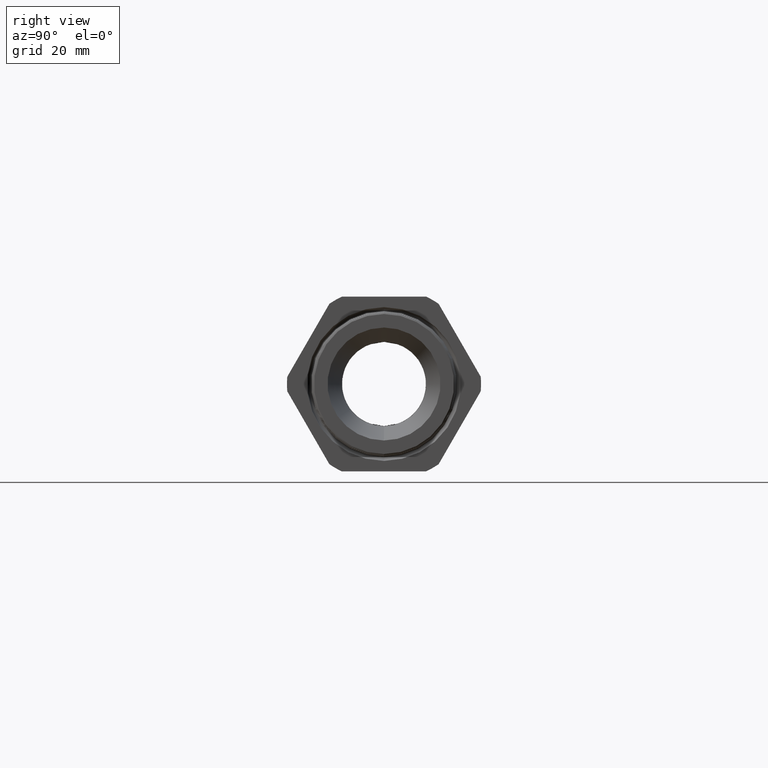
[diagram: clean part render]
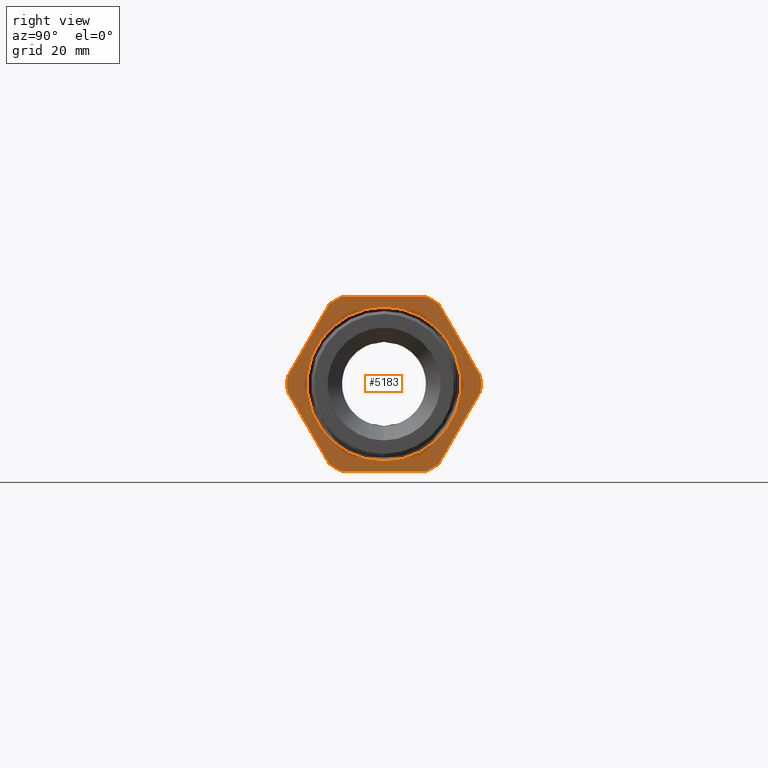
[diagram: same view with one face highlighted and labeled with its STEP entity id]
A machine part, right view. The second image highlights one B-rep face of the part: STEP entity #5183.
In plain terms, the highlighted planar face has unit normal (1, 0, 0).
Its self-contained STEP definition (entity closure, byte-faithful):
#4722 = ORIENTED_EDGE ( 'NONE', *, *, #4728, .T. ) ;
#4728 = EDGE_CURVE ( 'NONE', #4841, #5187, #10924, .T. ) ;
#4831 = ORIENTED_EDGE ( 'NONE', *, *, #4851, .T. ) ;
#4832 = VERTEX_POINT ( 'NONE', #10990 ) ;
#4833 = ORIENTED_EDGE ( 'NONE', *, *, #4857, .T. ) ;
#4837 = ORIENTED_EDGE ( 'NONE', *, *, #4840, .T. ) ;
#4838 = VERTEX_POINT ( 'NONE', #10989 ) ;
#4839 = EDGE_CURVE ( 'NONE', #4842, #4841, #10988, .T. ) ;
#4840 = EDGE_CURVE ( 'NONE', #4854, #4843, #10983, .T. ) ;
#4841 = VERTEX_POINT ( 'NONE', #11040 ) ;
#4842 = VERTEX_POINT ( 'NONE', #11039 ) ;
#4843 = VERTEX_POINT ( 'NONE', #11038 ) ;
#4844 = ORIENTED_EDGE ( 'NONE', *, *, #4852, .T. ) ;
#4845 = ORIENTED_EDGE ( 'NONE', *, *, #4839, .T. ) ;
#4846 = ORIENTED_EDGE ( 'NONE', *, *, #4848, .T. ) ;
#4847 = ORIENTED_EDGE ( 'NONE', *, *, #4849, .T. ) ;
#4848 = EDGE_CURVE ( 'NONE', #4843, #5173, #11037, .T. ) ;
#4849 = EDGE_CURVE ( 'NONE', #4855, #4854, #11033, .T. ) ;
#4850 = EDGE_CURVE ( 'NONE', #4856, #4838, #11029, .T. ) ;
#4851 = EDGE_CURVE ( 'NONE', #4832, #4856, #11025, .T. ) ;
#4852 = EDGE_CURVE ( 'NONE', #4838, #4842, #11020, .T. ) ;
#4853 = ORIENTED_EDGE ( 'NONE', *, *, #4850, .T. ) ;
#4854 = VERTEX_POINT ( 'NONE', #11015 ) ;
#4855 = VERTEX_POINT ( 'NONE', #11014 ) ;
#4856 = VERTEX_POINT ( 'NONE', #11013 ) ;
#4857 = EDGE_CURVE ( 'NONE', #5176, #4832, #11012, .T. ) ;
#4900 = ORIENTED_EDGE ( 'NONE', *, *, #4901, .T. ) ;
#4901 = EDGE_CURVE ( 'NONE', #8871, #8868, #11079, .T. ) ;
#4905 = ORIENTED_EDGE ( 'NONE', *, *, #8877, .T. ) ;
#5172 = EDGE_LOOP ( 'NONE', ( #4905, #4900 ) ) ;
#5173 = VERTEX_POINT ( 'NONE', #11688 ) ;
#5174 = ORIENTED_EDGE ( 'NONE', *, *, #5175, .T. ) ;
#5175 = EDGE_CURVE ( 'NONE', #5173, #5176, #11687, .T. ) ;
#5176 = VERTEX_POINT ( 'NONE', #11682 ) ;
#5183 = ADVANCED_FACE ( 'NONE', ( #11673, #11672 ), #11671, .T. ) ;
#5184 = EDGE_LOOP ( 'NONE', ( #5185, #5189, #4847, #4837, #4846, #5174, #4833, #4831, #4853, #4844, #4845, #4722 ) ) ;
#5185 = ORIENTED_EDGE ( 'NONE', *, *, #5186, .T. ) ;
#5186 = EDGE_CURVE ( 'NONE', #5187, #5188, #11729, .T. ) ;
#5187 = VERTEX_POINT ( 'NONE', #11725 ) ;
#5188 = VERTEX_POINT ( 'NONE', #11724 ) ;
#5189 = ORIENTED_EDGE ( 'NONE', *, *, #5190, .T. ) ;
#5190 = EDGE_CURVE ( 'NONE', #5188, #4855, #11723, .T. ) ;
#8868 = VERTEX_POINT ( 'NONE', #12357 ) ;
#8871 = VERTEX_POINT ( 'NONE', #12356 ) ;
#8877 = EDGE_CURVE ( 'NONE', #8868, #8871, #12418, .T. ) ;
#10744 = DIRECTION ( 'NONE',  ( 0.0000000000000000000, 0.0000000000000000000, -1.000000000000000000 ) ) ;
#10920 = DIRECTION ( 'NONE',  ( 0.0000000000000000000, 0.0000000000000000000, -1.000000000000000000 ) ) ;
#10921 = DIRECTION ( 'NONE',  ( 1.000000000000000000, 0.0000000000000000000, 0.0000000000000000000 ) ) ;
#10922 = CARTESIAN_POINT ( 'NONE',  ( -0.3100000000000000000, 0.0000000000000000000, 0.0000000000000000000 ) ) ;
#10923 = AXIS2_PLACEMENT_3D ( 'NONE', #10922, #10921, #10920 ) ;
#10924 = CIRCLE ( 'NONE', #10923, 0.7214999999999999200 ) ;
#10980 = DIRECTION ( 'NONE',  ( 1.000000000000000000, 0.0000000000000000000, 0.0000000000000000000 ) ) ;
#10981 = CARTESIAN_POINT ( 'NONE',  ( -0.3100000000000000000, 0.0000000000000000000, 0.0000000000000000000 ) ) ;
#10982 = AXIS2_PLACEMENT_3D ( 'NONE', #10981, #10980, #10744 ) ;
#10983 = CIRCLE ( 'NONE', #10982, 0.7215000000000000300 ) ;
#10985 = DIRECTION ( 'NONE',  ( 0.0000000000000000000, 1.000000000000000000, 0.0000000000000000000 ) ) ;
#10986 = VECTOR ( 'NONE', #10985, 39.37007874015748100 ) ;
#10987 = CARTESIAN_POINT ( 'NONE',  ( -0.3100000000000000000, 1.300000000000000000, -0.6500000000000000200 ) ) ;
#10988 = LINE ( 'NONE', #10987, #10986 ) ;
#10989 = CARTESIAN_POINT ( 'NONE',  ( -0.3100000000000000000, -0.4063420493440883500, -0.5961949252843792300 ) ) ;
#10990 = CARTESIAN_POINT ( 'NONE',  ( -0.3100000000000000000, -0.7194909755756819800, 0.05380507471562089000 ) ) ;
#11011 = CARTESIAN_POINT ( 'NONE',  ( -0.3100000000000000000, -0.2379165124598855400, 0.8879165124598849000 ) ) ;
#11012 = LINE ( 'NONE', #11011, #11076 ) ;
#11013 = CARTESIAN_POINT ( 'NONE',  ( -0.3100000000000000000, -0.7194909755756819800, -0.05380507471562109800 ) ) ;
#11014 = CARTESIAN_POINT ( 'NONE',  ( -0.3100000000000000000, 0.7194909755756819800, 0.05380507471562104300 ) ) ;
#11015 = CARTESIAN_POINT ( 'NONE',  ( -0.3100000000000000000, 0.4063420493440886300, 0.5961949252843790100 ) ) ;
#11016 = DIRECTION ( 'NONE',  ( 0.0000000000000000000, 0.0000000000000000000, -1.000000000000000000 ) ) ;
#11017 = DIRECTION ( 'NONE',  ( 1.000000000000000000, 0.0000000000000000000, 0.0000000000000000000 ) ) ;
#11018 = CARTESIAN_POINT ( 'NONE',  ( -0.3100000000000000000, 0.0000000000000000000, 0.0000000000000000000 ) ) ;
#11019 = AXIS2_PLACEMENT_3D ( 'NONE', #11018, #11017, #11016 ) ;
#11020 = CIRCLE ( 'NONE', #11019, 0.7215000000000000300 ) ;
#11021 = DIRECTION ( 'NONE',  ( 0.0000000000000000000, 0.0000000000000000000, -1.000000000000000000 ) ) ;
#11022 = DIRECTION ( 'NONE',  ( 1.000000000000000000, 0.0000000000000000000, 0.0000000000000000000 ) ) ;
#11023 = CARTESIAN_POINT ( 'NONE',  ( -0.3100000000000000000, 0.0000000000000000000, 0.0000000000000000000 ) ) ;
#11024 = AXIS2_PLACEMENT_3D ( 'NONE', #11023, #11022, #11021 ) ;
#11025 = CIRCLE ( 'NONE', #11024, 0.7215000000000000300 ) ;
#11026 = DIRECTION ( 'NONE',  ( 0.0000000000000000000, 0.5000000000000001100, -0.8660254037844384900 ) ) ;
#11027 = VECTOR ( 'NONE', #11026, 39.37007874015748900 ) ;
#11028 = CARTESIAN_POINT ( 'NONE',  ( -0.3100000000000000000, -0.2379165124598852700, -0.8879165124598856800 ) ) ;
#11029 = LINE ( 'NONE', #11028, #11027 ) ;
#11030 = DIRECTION ( 'NONE',  ( 0.0000000000000000000, -0.5000000000000000000, 0.8660254037844386000 ) ) ;
#11031 = VECTOR ( 'NONE', #11030, 39.37007874015748900 ) ;
#11032 = CARTESIAN_POINT ( 'NONE',  ( -0.3100000000000000000, 0.8879165124598853400, -0.2379165124598851000 ) ) ;
#11033 = LINE ( 'NONE', #11032, #11031 ) ;
#11034 = DIRECTION ( 'NONE',  ( 0.0000000000000000000, -1.000000000000000000, 0.0000000000000000000 ) ) ;
#11035 = VECTOR ( 'NONE', #11034, 39.37007874015748100 ) ;
#11036 = CARTESIAN_POINT ( 'NONE',  ( -0.3100000000000000000, 1.300000000000000000, 0.6500000000000000200 ) ) ;
#11037 = LINE ( 'NONE', #11036, #11035 ) ;
#11038 = CARTESIAN_POINT ( 'NONE',  ( -0.3100000000000000000, 0.3131489262315935700, 0.6500000000000000200 ) ) ;
#11039 = CARTESIAN_POINT ( 'NONE',  ( -0.3100000000000000000, -0.3131489262315936800, -0.6500000000000000200 ) ) ;
#11040 = CARTESIAN_POINT ( 'NONE',  ( -0.3100000000000000000, 0.3131489262315935700, -0.6499999999999999100 ) ) ;
#11075 = DIRECTION ( 'NONE',  ( 0.0000000000000000000, -0.4999999999999998300, -0.8660254037844388200 ) ) ;
#11076 = VECTOR ( 'NONE', #11075, 39.37007874015748100 ) ;
#11077 = DIRECTION ( 'NONE',  ( -1.000000000000000000, 0.0000000000000000000, 0.0000000000000000000 ) ) ;
#11078 = AXIS2_PLACEMENT_3D ( 'NONE', #11084, #11077, #11150 ) ;
#11079 = CIRCLE ( 'NONE', #11078, 0.5720328561321572600 ) ;
#11084 = CARTESIAN_POINT ( 'NONE',  ( -0.3100000000000000000, 0.0000000000000000000, 0.0000000000000000000 ) ) ;
#11150 = DIRECTION ( 'NONE',  ( 0.0000000000000000000, 0.0000000000000000000, -1.000000000000000000 ) ) ;
#11667 = DIRECTION ( 'NONE',  ( 0.0000000000000000000, 0.0000000000000000000, -1.000000000000000000 ) ) ;
#11668 = DIRECTION ( 'NONE',  ( 1.000000000000000000, 0.0000000000000000000, 0.0000000000000000000 ) ) ;
#11669 = CARTESIAN_POINT ( 'NONE',  ( -0.3100000000000000000, 1.300000000000000000, 0.0000000000000000000 ) ) ;
#11670 = AXIS2_PLACEMENT_3D ( 'NONE', #11669, #11668, #11667 ) ;
#11671 = PLANE ( 'NONE',  #11670 ) ;
#11672 = FACE_BOUND ( 'NONE', #5172, .T. ) ;
#11673 = FACE_OUTER_BOUND ( 'NONE', #5184, .T. ) ;
#11682 = CARTESIAN_POINT ( 'NONE',  ( -0.3100000000000000000, -0.4063420493440887400, 0.5961949252843790100 ) ) ;
#11683 = DIRECTION ( 'NONE',  ( 0.0000000000000000000, 0.0000000000000000000, -1.000000000000000000 ) ) ;
#11684 = DIRECTION ( 'NONE',  ( 1.000000000000000000, 0.0000000000000000000, 0.0000000000000000000 ) ) ;
#11685 = CARTESIAN_POINT ( 'NONE',  ( -0.3100000000000000000, 0.0000000000000000000, 0.0000000000000000000 ) ) ;
#11686 = AXIS2_PLACEMENT_3D ( 'NONE', #11685, #11684, #11683 ) ;
#11687 = CIRCLE ( 'NONE', #11686, 0.7215000000000000300 ) ;
#11688 = CARTESIAN_POINT ( 'NONE',  ( -0.3100000000000000000, -0.3131489262315937400, 0.6500000000000000200 ) ) ;
#11719 = DIRECTION ( 'NONE',  ( 0.0000000000000000000, 0.0000000000000000000, -1.000000000000000000 ) ) ;
#11720 = DIRECTION ( 'NONE',  ( 1.000000000000000000, 0.0000000000000000000, 0.0000000000000000000 ) ) ;
#11721 = CARTESIAN_POINT ( 'NONE',  ( -0.3100000000000000000, 0.0000000000000000000, 0.0000000000000000000 ) ) ;
#11722 = AXIS2_PLACEMENT_3D ( 'NONE', #11721, #11720, #11719 ) ;
#11723 = CIRCLE ( 'NONE', #11722, 0.7214999999999999200 ) ;
#11724 = CARTESIAN_POINT ( 'NONE',  ( -0.3100000000000000000, 0.7194909755756819800, -0.05380507471562091100 ) ) ;
#11725 = CARTESIAN_POINT ( 'NONE',  ( -0.3100000000000000000, 0.4063420493440886800, -0.5961949252843789000 ) ) ;
#11726 = DIRECTION ( 'NONE',  ( 0.0000000000000000000, 0.4999999999999998300, 0.8660254037844388200 ) ) ;
#11727 = VECTOR ( 'NONE', #11726, 39.37007874015748100 ) ;
#11728 = CARTESIAN_POINT ( 'NONE',  ( -0.3100000000000000000, 0.8879165124598851200, 0.2379165124598851000 ) ) ;
#11729 = LINE ( 'NONE', #11728, #11727 ) ;
#12356 = CARTESIAN_POINT ( 'NONE',  ( -0.3100000000000000000, 7.005382062693649500E-017, 0.5720328561321572600 ) ) ;
#12357 = CARTESIAN_POINT ( 'NONE',  ( -0.3100000000000000000, 0.0000000000000000000, -0.5720328561321572600 ) ) ;
#12414 = DIRECTION ( 'NONE',  ( 0.0000000000000000000, 0.0000000000000000000, -1.000000000000000000 ) ) ;
#12415 = DIRECTION ( 'NONE',  ( -1.000000000000000000, 0.0000000000000000000, 0.0000000000000000000 ) ) ;
#12416 = CARTESIAN_POINT ( 'NONE',  ( -0.3100000000000000000, 0.0000000000000000000, 0.0000000000000000000 ) ) ;
#12417 = AXIS2_PLACEMENT_3D ( 'NONE', #12416, #12415, #12414 ) ;
#12418 = CIRCLE ( 'NONE', #12417, 0.5720328561321572600 ) ;